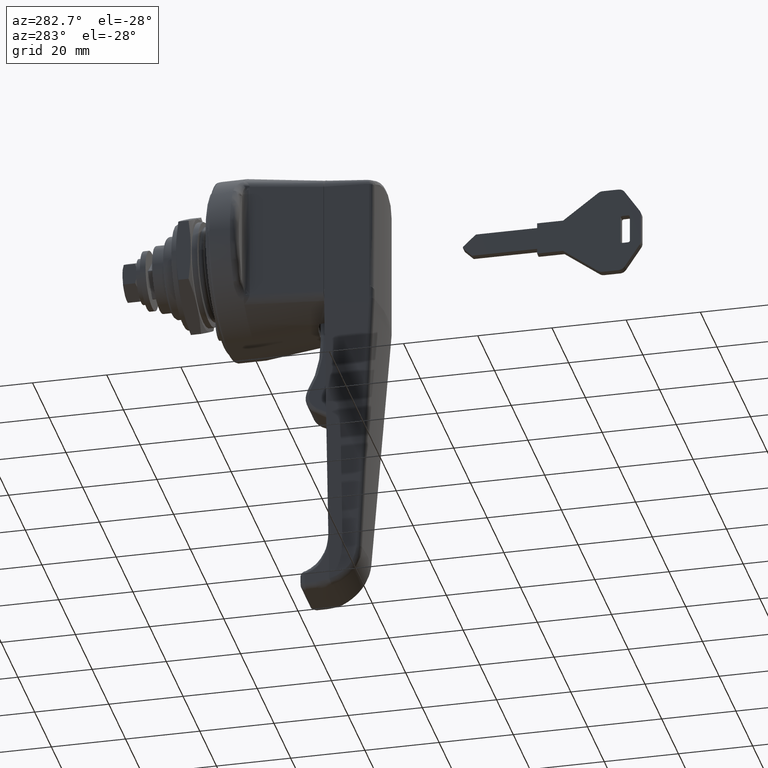
[diagram: clean part render]
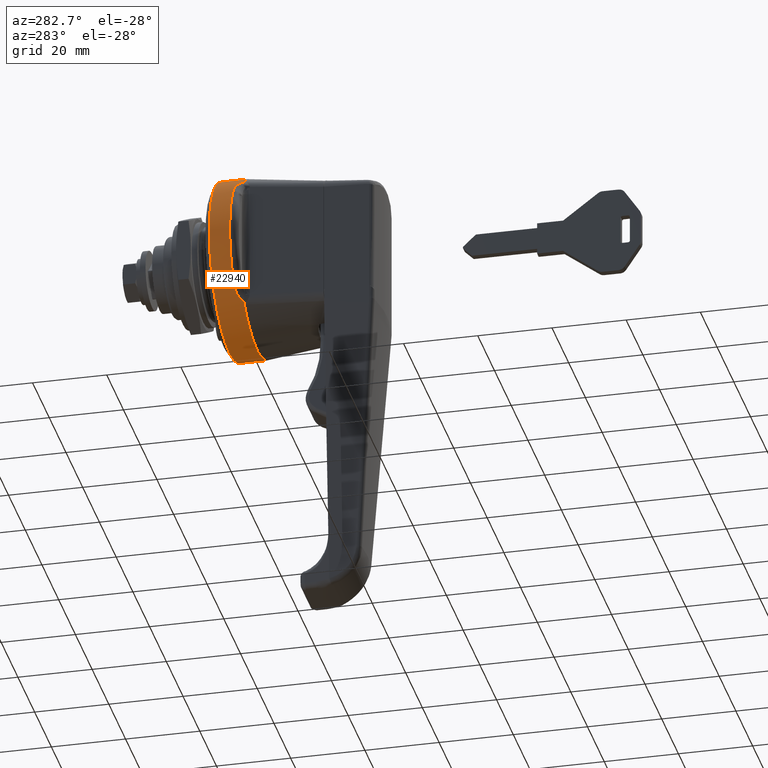
[diagram: same view with one face highlighted and labeled with its STEP entity id]
A machine part, auxiliary view. The second image highlights one B-rep face of the part: STEP entity #22940.
In plain terms, the highlighted face is a freeform B-spline surface patch.
Its self-contained STEP definition (entity closure, byte-faithful):
#22661=CARTESIAN_POINT('',(-1.312499997217314,4.659876852665353,23.543269690465536));
#22662=CARTESIAN_POINT('',(-1.312499997217313,5.333675116333699,23.409906016960761));
#22663=CARTESIAN_POINT('',(-1.312499997217314,5.998743119599301,23.238224566112180));
#22664=CARTESIAN_POINT('',(-1.312499997217314,29.236967685711480,17.239481446512880));
#22665=CARTESIAN_POINT('',(-1.312499997217314,23.238224566112180,-5.998743119599301));
#22666=CARTESIAN_POINT('',(-1.312499997217314,17.239481446512880,-29.236967685711480));
#22667=CARTESIAN_POINT('',(-1.312499997217314,-5.998743119599301,-23.238224566112180));
#22668=CARTESIAN_POINT('',(-1.312499997217314,-29.236967685711480,-17.239481446512880));
#22669=CARTESIAN_POINT('',(-1.312499997217314,-23.238224566112180,5.998743119599301));
#22670=CARTESIAN_POINT('',(-9.192187500069570,4.659876852665353,23.543269690465536));
#22671=CARTESIAN_POINT('',(-9.192187500069570,5.333675116333699,23.409906016960761));
#22672=CARTESIAN_POINT('',(-9.192187500069569,5.998743119599301,23.238224566112180));
#22673=CARTESIAN_POINT('',(-9.192187500069569,29.236967685711480,17.239481446512880));
#22674=CARTESIAN_POINT('',(-9.192187500069569,23.238224566112180,-5.998743119599301));
#22675=CARTESIAN_POINT('',(-9.192187500069569,17.239481446512880,-29.236967685711480));
#22676=CARTESIAN_POINT('',(-9.192187500069569,-5.998743119599301,-23.238224566112180));
#22677=CARTESIAN_POINT('',(-9.192187500069569,-29.236967685711480,-17.239481446512880));
#22678=CARTESIAN_POINT('',(-9.192187500069569,-23.238224566112180,5.998743119599301));
#22686=(BOUNDED_SURFACE()B_SPLINE_SURFACE(2,1,((#22661,#22670),(#22662,#22671),(#22663,#22672),(#22664,#22673),(#22665,#22674),(#22666,#22675),(#22667,#22676),(#22668,#22677),(#22669,#22678)),.UNSPECIFIED.,.F.,.F.,.U.)B_SPLINE_SURFACE_WITH_KNOTS((3,2,2,2,3),(2,2),(0.0,1.590580079512687,41.355082067329803,81.119584055146902,120.884086042964000),(0.0,7.879687502852256),.UNSPECIFIED.)GEOMETRIC_REPRESENTATION_ITEM()RATIONAL_B_SPLINE_SURFACE(((0.977505800795127,0.977505800795127),(0.988284271247462,0.988284271247462),(1.0,1.0),(0.707106781186548,0.707106781186548),(1.0,1.0),(0.707106781186548,0.707106781186548),(1.0,1.0),(0.707106781186548,0.707106781186548),(1.0,1.0)))REPRESENTATION_ITEM('')SURFACE());
#22687=CARTESIAN_POINT('',(-1.499999999952220,4.659876775231644,23.543269705791850));
#22688=VERTEX_POINT('',#22687);
#22689=CARTESIAN_POINT('',(-1.499999997494160,24.0,3.552714E-015));
#22690=VERTEX_POINT('',#22689);
#22691=CARTESIAN_POINT('',(-1.499999999952220,4.659876775231644,23.543269705791850));
#22692=CARTESIAN_POINT('',(-1.499999999922614,6.093455704608304,23.259680581412699));
#22693=CARTESIAN_POINT('',(-1.499999999841012,8.742853506795425,22.478178987449020));
#22694=CARTESIAN_POINT('',(-1.499999999633748,12.764084193431200,20.492887055069900));
#22695=CARTESIAN_POINT('',(-1.499999999350898,16.352136738104399,17.783832327594400));
#22696=CARTESIAN_POINT('',(-1.499999999033919,19.043301260880920,14.747776496780190));
#22697=CARTESIAN_POINT('',(-1.499999998710693,21.072705412645220,11.651910162006150));
#22698=CARTESIAN_POINT('',(-1.499999998417364,22.397244923769421,8.842426385785215));
#22699=CARTESIAN_POINT('',(-1.499999997996737,23.647357461084781,4.813647430612642));
#22700=CARTESIAN_POINT('',(-1.499999997700581,24.000575350637192,1.977195985030285));
#22701=CARTESIAN_POINT('',(-1.499999997494160,24.0,3.552714E-015));
#22702=B_SPLINE_CURVE_WITH_KNOTS('',3,(#22691,#22692,#22693,#22694,#22695,#22696,#22697,#22698,#22699,#22700,#22701),.UNSPECIFIED.,.F.,.U.,(4,1,1,1,1,1,1,1,4),(0.000000010904230,4.384064393065156,8.252402171885358,13.410158140861620,17.794240787841868,20.373103010884240,24.499315818698740,27.078207962694581,33.009607181764359),.UNSPECIFIED.);
#22703=EDGE_CURVE('',#22688,#22690,#22702,.T.);
#22704=ORIENTED_EDGE('',*,*,#22703,.T.);
#22705=CARTESIAN_POINT('',(-1.499999999999920,0.0,-24.0));
#22706=VERTEX_POINT('',#22705);
#22707=CARTESIAN_POINT('',(-1.499999997494160,24.0,3.552714E-015));
#22708=CARTESIAN_POINT('',(-1.499999997688918,24.000383004586421,-1.865338756279836));
#22709=CARTESIAN_POINT('',(-1.499999998037395,23.608836384398629,-5.203107788202281));
#22710=CARTESIAN_POINT('',(-1.499999998539735,21.986668575951992,-10.014506394069789));
#22711=CARTESIAN_POINT('',(-1.499999998923438,19.859942943415930,-13.689382905960681));
#22712=CARTESIAN_POINT('',(-1.499999999238560,17.335419294800449,-16.708055532328171));
#22713=CARTESIAN_POINT('',(-1.499999999459464,15.001360804047620,-18.823529633372910));
#22714=CARTESIAN_POINT('',(-1.499999999649096,12.371452704144570,-20.639720406429529));
#22715=CARTESIAN_POINT('',(-1.499999999817054,9.270822712547826,-22.248581014209989));
#22716=CARTESIAN_POINT('',(-1.499999999960758,5.104976500385339,-23.624871172658750));
#22717=CARTESIAN_POINT('',(-1.499999999999955,1.816252113755384,-24.000337310726682));
#22718=CARTESIAN_POINT('',(-1.499999999999920,0.0,-24.0));
#22719=B_SPLINE_CURVE_WITH_KNOTS('',3,(#22707,#22708,#22709,#22710,#22711,#22712,#22713,#22714,#22715,#22716,#22717,#22718),.UNSPECIFIED.,.F.,.U.,(4,1,1,1,1,1,1,1,1,4),(0.000000105611718,5.595946490900630,10.013844193518869,15.168062138283020,18.260590326064442,21.794786206772141,24.592809141674341,27.832588243354220,32.250466234017033,37.699170982045537),.UNSPECIFIED.);
#22720=EDGE_CURVE('',#22690,#22706,#22719,.T.);
#22721=ORIENTED_EDGE('',*,*,#22720,.T.);
#22722=CARTESIAN_POINT('',(-1.499999997285184,-23.839479330836230,-2.771141503899008));
#22723=VERTEX_POINT('',#22722);
#22724=CARTESIAN_POINT('',(-1.499999999999920,0.0,-24.0));
#22725=CARTESIAN_POINT('',(-1.499999999999925,-1.000349320689141,-24.000023991278020));
#22726=CARTESIAN_POINT('',(-1.499999999982809,-3.137481567996840,-23.866212810962161));
#22727=CARTESIAN_POINT('',(-1.499999999899904,-6.401491641330104,-23.217892214708471));
#22728=CARTESIAN_POINT('',(-1.499999999767293,-9.323409681311272,-22.180835012804351));
#22729=CARTESIAN_POINT('',(-1.499999999566983,-12.459434225255389,-20.614580675743959));
#22730=CARTESIAN_POINT('',(-1.499999999299968,-15.458811794164291,-18.526433001010989));
#22731=CARTESIAN_POINT('',(-1.499999998936280,-18.292615147870670,-15.682079595591061));
#22732=CARTESIAN_POINT('',(-1.499999998549913,-20.495229446147089,-12.661896534212090));
#22733=CARTESIAN_POINT('',(-1.499999998203293,-21.905134078304709,-9.950318503832703));
#22734=CARTESIAN_POINT('',(-1.499999997778437,-23.155955113344749,-6.628434875112098));
#22735=CARTESIAN_POINT('',(-1.499999997493129,-23.650742481033380,-4.397212773840856));
#22736=CARTESIAN_POINT('',(-1.499999997285184,-23.839479330836230,-2.771141503899008));
#22737=B_SPLINE_CURVE_WITH_KNOTS('',3,(#22724,#22725,#22726,#22727,#22728,#22729,#22730,#22731,#22732,#22733,#22734,#22735,#22736),.UNSPECIFIED.,.F.,.U.,(4,1,1,1,1,1,1,1,1,1,4),(0.000000085022080,3.001051705974565,6.411412486839225,9.958177836735953,12.277217231271090,16.915287491977129,20.871217788286639,24.281569143504338,28.101164859406570,30.010944509175811,34.921822639062199),.UNSPECIFIED.);
#22738=EDGE_CURVE('',#22706,#22723,#22737,.T.);
#22739=ORIENTED_EDGE('',*,*,#22738,.T.);
#22740=CARTESIAN_POINT('',(-1.499999998730843,-23.238224587901659,5.998743035190170));
#22741=VERTEX_POINT('',#22740);
#22742=CARTESIAN_POINT('',(-1.499999997285184,-23.839479330836230,-2.771141503899008));
#22743=CARTESIAN_POINT('',(-1.499999997465398,-23.956443186517902,-1.764961834914187));
#22744=CARTESIAN_POINT('',(-1.499999997979020,-24.111228340855099,1.183703219385959));
#22745=CARTESIAN_POINT('',(-1.499999998449631,-23.722107898508860,4.126368658735339));
#22746=CARTESIAN_POINT('',(-1.499999998730843,-23.238224587901659,5.998743035190170));
#22747=B_SPLINE_CURVE_WITH_KNOTS('',3,(#22742,#22743,#22744,#22745,#22746),.UNSPECIFIED.,.F.,.U.,(4,1,4),(5.549868E-009,3.038884424976097,8.840376358083521),.UNSPECIFIED.);
#22748=EDGE_CURVE('',#22723,#22741,#22747,.T.);
#22749=ORIENTED_EDGE('',*,*,#22748,.T.);
#22750=CARTESIAN_POINT('',(-7.0,-23.238224584320388,5.998743049063442));
#22751=VERTEX_POINT('',#22750);
#22752=CARTESIAN_POINT('',(-1.499999998730843,-23.238224587901659,5.998743035190170));
#22753=CARTESIAN_POINT('',(-7.0,-23.238224584320388,5.998743049063442));
#22754=QUASI_UNIFORM_CURVE('',1,(#22752,#22753),.UNSPECIFIED.,.F.,.U.);
#22755=EDGE_CURVE('',#22741,#22751,#22754,.T.);
#22756=ORIENTED_EDGE('',*,*,#22755,.T.);
#22757=CARTESIAN_POINT('',(-7.0,-19.870219480539902,-13.460103186646460));
#22758=VERTEX_POINT('',#22757);
#22759=CARTESIAN_POINT('',(-7.0,-23.238224584320388,5.998743049063442));
#22760=CARTESIAN_POINT('',(-7.000000000000024,-23.715598137280491,4.151323390443753));
#22761=CARTESIAN_POINT('',(-6.999999999999952,-24.183301723398358,0.659536250367967));
#22762=CARTESIAN_POINT('',(-6.999999999999992,-23.788738085497389,-3.957582149848349));
#22763=CARTESIAN_POINT('',(-7.000000000000060,-22.866643968596620,-7.505700989144195));
#22764=CARTESIAN_POINT('',(-6.999999999999797,-21.635236920714949,-10.558652814919981));
#22765=CARTESIAN_POINT('',(-7.000000000000235,-20.553964804183892,-12.450873365096861));
#22766=CARTESIAN_POINT('',(-7.0,-19.870219480539902,-13.460103186646460));
#22767=B_SPLINE_CURVE_WITH_KNOTS('',3,(#22759,#22760,#22761,#22762,#22763,#22764,#22765,#22766),.UNSPECIFIED.,.F.,.U.,(4,1,1,1,1,4),(0.000000032942900,5.724169190375969,10.494283780873340,13.833404706647819,16.695491494862210,20.352597456692351),.UNSPECIFIED.);
#22768=EDGE_CURVE('',#22751,#22758,#22767,.T.);
#22769=ORIENTED_EDGE('',*,*,#22768,.T.);
#22770=CARTESIAN_POINT('',(-9.0,-16.091199536753301,-17.806552093776901));
#22771=VERTEX_POINT('',#22770);
#22772=CARTESIAN_POINT('',(-7.0,-19.870219480539902,-13.460103186646460));
#22773=CARTESIAN_POINT('',(-7.000000000000003,-19.796432345620449,-13.569030031066520));
#22774=CARTESIAN_POINT('',(-7.001714196380235,-19.721777207840979,-13.677309362903619));
#22775=CARTESIAN_POINT('',(-7.008829639058615,-19.570737357167999,-13.892570926255351));
#22776=CARTESIAN_POINT('',(-7.014238674437497,-19.494291817875691,-13.999634725017140));
#22777=CARTESIAN_POINT('',(-7.036353459767455,-19.263143414170251,-14.317822790589110));
#22778=CARTESIAN_POINT('',(-7.058922501299836,-19.106463726855178,-14.526189233186519));
#22779=CARTESIAN_POINT('',(-7.122003404366749,-18.788409710793349,-14.935286750623259));
#22780=CARTESIAN_POINT('',(-7.162502190991373,-18.627033414618712,-15.136019056361540));
#22781=CARTESIAN_POINT('',(-7.264537484721942,-18.300155965972781,-15.529640637340339));
#22782=CARTESIAN_POINT('',(-7.326048527526568,-18.134651098835750,-15.722532403956199));
#22783=CARTESIAN_POINT('',(-7.437437246083621,-17.883866889060251,-16.005724101453939));
#22784=CARTESIAN_POINT('',(-7.477891103632317,-17.799632735368849,-16.099332178690961));
#22785=CARTESIAN_POINT('',(-7.565090512559855,-17.632075026820019,-16.282670308104802));
#22786=CARTESIAN_POINT('',(-7.611861952944978,-17.548653587798540,-16.372518932691921));
#22787=CARTESIAN_POINT('',(-7.762445840117315,-17.299875971511320,-16.636489027254662));
#22788=CARTESIAN_POINT('',(-7.876436521755563,-17.135969871735949,-16.805061681011921));
#22789=CARTESIAN_POINT('',(-8.072107780262824,-16.895193396391029,-17.045976958961869));
#22790=CARTESIAN_POINT('',(-8.141464916698974,-16.815789381186018,-17.124285780018369));
#22791=CARTESIAN_POINT('',(-8.252496380452900,-16.698340275969571,-17.238573491590589));
#22792=CARTESIAN_POINT('',(-8.290752316508600,-16.659394917004992,-17.276208833733211));
#22793=CARTESIAN_POINT('',(-8.369244300573255,-16.582634577300830,-17.349900897215520));
#22794=CARTESIAN_POINT('',(-8.409497766642849,-16.544794555532381,-17.385983091564800));
#22795=CARTESIAN_POINT('',(-8.616002446002126,-16.358489414178010,-17.562516425770131));
#22796=CARTESIAN_POINT('',(-8.797769045554098,-16.218572005103599,-17.691449754316672));
#22797=CARTESIAN_POINT('',(-9.0,-16.091199536753251,-17.806552093776901));
#22798=B_SPLINE_CURVE_WITH_KNOTS('',3,(#22772,#22773,#22774,#22775,#22776,#22777,#22778,#22779,#22780,#22781,#22782,#22783,#22784,#22785,#22786,#22787,#22788,#22789,#22790,#22791,#22792,#22793,#22794,#22795,#22796,#22797),.UNSPECIFIED.,.F.,.U.,(4,2,2,2,2,2,2,2,2,2,2,2,4),(0.0,0.062500000000000,0.125000000000000,0.250000000000000,0.375000000000001,0.500000000000001,0.562500000000000,0.625000000000000,0.749999999999998,0.812499999999997,0.843749999999997,0.874999999999997,1.0),.UNSPECIFIED.);
#22799=EDGE_CURVE('',#22758,#22771,#22798,.T.);
#22800=ORIENTED_EDGE('',*,*,#22799,.T.);
#22801=CARTESIAN_POINT('',(-9.0,-15.435111378219000,-18.378175555314900));
#22802=VERTEX_POINT('',#22801);
#22803=CARTESIAN_POINT('',(-9.0,-15.435111378219000,-18.378175555314900));
#22804=CARTESIAN_POINT('',(-8.999999999999996,-15.657235247704021,-18.191622640774671));
#22805=CARTESIAN_POINT('',(-9.000000000000004,-15.875985634564310,-18.001034169405870));
#22806=CARTESIAN_POINT('',(-9.0,-16.091199536753301,-17.806552093776901));
#22807=B_SPLINE_CURVE_WITH_KNOTS('',3,(#22803,#22804,#22805,#22806),.UNSPECIFIED.,.F.,.U.,(4,4),(6.120826E-011,0.870225950399746),.UNSPECIFIED.);
#22808=EDGE_CURVE('',#22802,#22771,#22807,.T.);
#22809=ORIENTED_EDGE('',*,*,#22808,.F.);
#22810=CARTESIAN_POINT('',(-9.0,15.435111378219000,-18.378175555314900));
#22811=VERTEX_POINT('',#22810);
#22812=CARTESIAN_POINT('',(-9.0,15.435111378219000,-18.378175555314900));
#22813=CARTESIAN_POINT('',(-9.000000000000004,14.499001746641319,-19.164456632002810));
#22814=CARTESIAN_POINT('',(-9.0,12.506278225625859,-20.593490046993480));
#22815=CARTESIAN_POINT('',(-9.000000000000011,8.835331303441745,-22.455507626313150));
#22816=CARTESIAN_POINT('',(-8.999999999999993,4.880512404215130,-23.632452013623720));
#22817=CARTESIAN_POINT('',(-9.000000000000036,0.962925703175629,-24.061576012324970));
#22818=CARTESIAN_POINT('',(-9.000000000000009,-2.010790237661208,-23.964113911790839));
#22819=CARTESIAN_POINT('',(-8.999999999999973,-4.952711009692973,-23.543853969185871));
#22820=CARTESIAN_POINT('',(-9.000000000000076,-8.251773420880010,-22.659470011937628));
#22821=CARTESIAN_POINT('',(-9.000000000000055,-11.996363035375170,-20.936783441137070));
#22822=CARTESIAN_POINT('',(-8.999999999999936,-14.365295246435441,-19.276807237215589));
#22823=CARTESIAN_POINT('',(-9.0,-15.435111378219000,-18.378175555314900));
#22824=B_SPLINE_CURVE_WITH_KNOTS('',3,(#22812,#22813,#22814,#22815,#22816,#22817,#22818,#22819,#22820,#22821,#22822,#22823),.UNSPECIFIED.,.F.,.U.,(4,1,1,1,1,1,1,1,1,4),(0.000000021301346,3.667551257962934,7.335106385932054,12.312519983533560,15.980070260997641,19.123657085282009,21.219407888628862,24.886974487582549,29.340446813181771,33.531923622935800),.UNSPECIFIED.);
#22825=EDGE_CURVE('',#22811,#22802,#22824,.T.);
#22826=ORIENTED_EDGE('',*,*,#22825,.F.);
#22827=CARTESIAN_POINT('',(-9.0,16.091199536753301,-17.806552093776901));
#22828=VERTEX_POINT('',#22827);
#22829=CARTESIAN_POINT('',(-9.0,16.091199536753301,-17.806552093776901));
#22830=CARTESIAN_POINT('',(-9.000000000000005,15.875984711331309,-18.001034952242740));
#22831=CARTESIAN_POINT('',(-9.000000000000002,15.657234345807341,-18.191623448100572));
#22832=CARTESIAN_POINT('',(-9.0,15.435111378219000,-18.378175555314900));
#22833=B_SPLINE_CURVE_WITH_KNOTS('',3,(#22829,#22830,#22831,#22832),.UNSPECIFIED.,.F.,.U.,(4,4),(6.121348E-011,0.870225950399747),.UNSPECIFIED.);
#22834=EDGE_CURVE('',#22828,#22811,#22833,.T.);
#22835=ORIENTED_EDGE('',*,*,#22834,.F.);
#22836=CARTESIAN_POINT('',(-7.0,19.870219480539902,-13.460103186646460));
#22837=VERTEX_POINT('',#22836);
#22838=CARTESIAN_POINT('',(-9.0,16.091199536753251,-17.806552093776901));
#22839=CARTESIAN_POINT('',(-8.797769045554100,16.218572005103610,-17.691449754316672));
#22840=CARTESIAN_POINT('',(-8.616002446002128,16.358489414178020,-17.562516425770131));
#22841=CARTESIAN_POINT('',(-8.409497766642849,16.544794555532370,-17.385983091564800));
#22842=CARTESIAN_POINT('',(-8.369244300573252,16.582634577300830,-17.349900897215520));
#22843=CARTESIAN_POINT('',(-8.290752316508604,16.659394917004981,-17.276208833733211));
#22844=CARTESIAN_POINT('',(-8.252496380452900,16.698340275969560,-17.238573491590589));
#22845=CARTESIAN_POINT('',(-8.141464916698975,16.815789381186018,-17.124285780018369));
#22846=CARTESIAN_POINT('',(-8.072107780262822,16.895193396391029,-17.045976958961880));
#22847=CARTESIAN_POINT('',(-7.876436521755561,17.135969871735949,-16.805061681011932));
#22848=CARTESIAN_POINT('',(-7.762445840117317,17.299875971511320,-16.636489027254669));
#22849=CARTESIAN_POINT('',(-7.611861952944977,17.548653587798530,-16.372518932691921));
#22850=CARTESIAN_POINT('',(-7.565090512559854,17.632075026820019,-16.282670308104802));
#22851=CARTESIAN_POINT('',(-7.477891103632317,17.799632735368849,-16.099332178690961));
#22852=CARTESIAN_POINT('',(-7.437437246083620,17.883866889060251,-16.005724101453950));
#22853=CARTESIAN_POINT('',(-7.326048527526567,18.134651098835750,-15.722532403956199));
#22854=CARTESIAN_POINT('',(-7.264537484721943,18.300155965972781,-15.529640637340339));
#22855=CARTESIAN_POINT('',(-7.162502190991375,18.627033414618712,-15.136019056361540));
#22856=CARTESIAN_POINT('',(-7.122003404366753,18.788409710793349,-14.935286750623259));
#22857=CARTESIAN_POINT('',(-7.058922501299838,19.106463726855178,-14.526189233186519));
#22858=CARTESIAN_POINT('',(-7.036353459767457,19.263143414170251,-14.317822790589110));
#22859=CARTESIAN_POINT('',(-7.014238674437497,19.494291817875698,-13.999634725017140));
#22860=CARTESIAN_POINT('',(-7.008829639058617,19.570737357167999,-13.892570926255360));
#22861=CARTESIAN_POINT('',(-7.001714196380235,19.721777207840979,-13.677309362903619));
#22862=CARTESIAN_POINT('',(-7.000000000000003,19.796432345620449,-13.569030031066520));
#22863=CARTESIAN_POINT('',(-7.0,19.870219480539902,-13.460103186646460));
#22864=B_SPLINE_CURVE_WITH_KNOTS('',3,(#22838,#22839,#22840,#22841,#22842,#22843,#22844,#22845,#22846,#22847,#22848,#22849,#22850,#22851,#22852,#22853,#22854,#22855,#22856,#22857,#22858,#22859,#22860,#22861,#22862,#22863),.UNSPECIFIED.,.F.,.U.,(4,2,2,2,2,2,2,2,2,2,2,2,4),(0.0,0.125000000000003,0.156250000000003,0.187500000000003,0.250000000000002,0.375000000000000,0.437500000000000,0.499999999999999,0.624999999999999,0.750000000000000,0.875000000000000,0.937500000000000,1.0),.UNSPECIFIED.);
#22865=EDGE_CURVE('',#22828,#22837,#22864,.T.);
#22866=ORIENTED_EDGE('',*,*,#22865,.T.);
#22867=CARTESIAN_POINT('',(-7.0,19.870219480539902,13.460103186646460));
#22868=VERTEX_POINT('',#22867);
#22869=CARTESIAN_POINT('',(-7.0,19.870219480539902,-13.460103186646460));
#22870=CARTESIAN_POINT('',(-7.000000000000012,20.621621468364690,-12.351032542725349));
#22871=CARTESIAN_POINT('',(-6.999999999999978,21.937945237227328,-10.006612593195500));
#22872=CARTESIAN_POINT('',(-7.000000000000025,23.425217220978212,-5.858677845215721));
#22873=CARTESIAN_POINT('',(-6.999999999999967,24.088997754358552,-1.568350457653737));
#22874=CARTESIAN_POINT('',(-7.000000000000014,23.967182428160900,2.162563938342755));
#22875=CARTESIAN_POINT('',(-6.999999999999963,23.474353224488631,5.252715120497878));
#22876=CARTESIAN_POINT('',(-7.000000000000114,22.423111823275018,8.987116180702557));
#22877=CARTESIAN_POINT('',(-6.999999999999848,20.997741941382390,11.796697538758229));
#22878=CARTESIAN_POINT('',(-7.0,19.870219480539902,13.460103186646460));
#22879=B_SPLINE_CURVE_WITH_KNOTS('',3,(#22869,#22870,#22871,#22872,#22873,#22874,#22875,#22876,#22877,#22878),.UNSPECIFIED.,.F.,.U.,(4,1,1,1,1,1,1,4),(0.000000045903008,4.018927935358235,8.037896881861602,13.173250839104290,16.968849588693860,19.201625712920439,22.550755234374510,28.579167608438460),.UNSPECIFIED.);
#22880=EDGE_CURVE('',#22837,#22868,#22879,.T.);
#22881=ORIENTED_EDGE('',*,*,#22880,.T.);
#22882=CARTESIAN_POINT('',(-9.0,16.091199536753301,17.806552093776901));
#22883=VERTEX_POINT('',#22882);
#22884=CARTESIAN_POINT('',(-7.0,19.870219480539902,13.460103186646460));
#22885=CARTESIAN_POINT('',(-7.000000000000001,19.796432345620449,13.569030031066520));
#22886=CARTESIAN_POINT('',(-7.001714196380236,19.721777207840979,13.677309362903619));
#22887=CARTESIAN_POINT('',(-7.008829639058617,19.570737357167999,13.892570926255360));
#22888=CARTESIAN_POINT('',(-7.014238674437496,19.494291817875698,13.999634725017140));
#22889=CARTESIAN_POINT('',(-7.036353459767457,19.263143414170258,14.317822790589110));
#22890=CARTESIAN_POINT('',(-7.058922501299837,19.106463726855178,14.526189233186519));
#22891=CARTESIAN_POINT('',(-7.122003404366750,18.788409710793360,14.935286750623259));
#22892=CARTESIAN_POINT('',(-7.162502190991374,18.627033414618712,15.136019056361540));
#22893=CARTESIAN_POINT('',(-7.264537484721942,18.300155965972781,15.529640637340339));
#22894=CARTESIAN_POINT('',(-7.326048527526567,18.134651098835761,15.722532403956199));
#22895=CARTESIAN_POINT('',(-7.437437246083623,17.883866889060251,16.005724101453950));
#22896=CARTESIAN_POINT('',(-7.477891103632316,17.799632735368839,16.099332178690961));
#22897=CARTESIAN_POINT('',(-7.565090512559856,17.632075026820019,16.282670308104809));
#22898=CARTESIAN_POINT('',(-7.611861952944979,17.548653587798540,16.372518932691928));
#22899=CARTESIAN_POINT('',(-7.762445840117318,17.299875971511309,16.636489027254669));
#22900=CARTESIAN_POINT('',(-7.876436521755560,17.135969871735949,16.805061681011921));
#22901=CARTESIAN_POINT('',(-8.072107780262824,16.895193396391040,17.045976958961880));
#22902=CARTESIAN_POINT('',(-8.141464916698974,16.815789381186018,17.124285780018369));
#22903=CARTESIAN_POINT('',(-8.252496380452902,16.698340275969560,17.238573491590600));
#22904=CARTESIAN_POINT('',(-8.290752316508605,16.659394917004981,17.276208833733211));
#22905=CARTESIAN_POINT('',(-8.369244300573255,16.582634577300830,17.349900897215520));
#22906=CARTESIAN_POINT('',(-8.409497766642852,16.544794555532370,17.385983091564810));
#22907=CARTESIAN_POINT('',(-8.616002446002135,16.358489414178020,17.562516425770131));
#22908=CARTESIAN_POINT('',(-8.797769045554100,16.218572005103610,17.691449754316672));
#22909=CARTESIAN_POINT('',(-9.0,16.091199536753301,17.806552093776901));
#22910=B_SPLINE_CURVE_WITH_KNOTS('',3,(#22884,#22885,#22886,#22887,#22888,#22889,#22890,#22891,#22892,#22893,#22894,#22895,#22896,#22897,#22898,#22899,#22900,#22901,#22902,#22903,#22904,#22905,#22906,#22907,#22908,#22909),.UNSPECIFIED.,.F.,.U.,(4,2,2,2,2,2,2,2,2,2,2,2,4),(0.0,0.062500000000001,0.125000000000002,0.250000000000003,0.375000000000005,0.500000000000006,0.562500000000006,0.625000000000006,0.750000000000005,0.812500000000004,0.843750000000003,0.875000000000002,1.0),.UNSPECIFIED.);
#22911=EDGE_CURVE('',#22868,#22883,#22910,.T.);
#22912=ORIENTED_EDGE('',*,*,#22911,.T.);
#22913=CARTESIAN_POINT('',(-9.0,15.435111378219000,18.378175555314900));
#22914=VERTEX_POINT('',#22913);
#22915=CARTESIAN_POINT('',(-9.0,15.435111378219000,18.378175555314900));
#22916=CARTESIAN_POINT('',(-9.0,15.657234345807341,18.191623448100540));
#22917=CARTESIAN_POINT('',(-9.000000000000011,15.875984711331309,18.001034952242730));
#22918=CARTESIAN_POINT('',(-9.0,16.091199536753301,17.806552093776901));
#22919=B_SPLINE_CURVE_WITH_KNOTS('',3,(#22915,#22916,#22917,#22918),.UNSPECIFIED.,.F.,.U.,(4,4),(6.121503E-011,0.870225950399747),.UNSPECIFIED.);
#22920=EDGE_CURVE('',#22914,#22883,#22919,.T.);
#22921=ORIENTED_EDGE('',*,*,#22920,.F.);
#22922=CARTESIAN_POINT('',(-9.0,4.659876936979122,23.543269673777470));
#22923=VERTEX_POINT('',#22922);
#22924=CARTESIAN_POINT('',(-9.0,4.659876936979122,23.543269673777470));
#22925=CARTESIAN_POINT('',(-8.999999999999995,6.202430448301715,23.238149260757218));
#22926=CARTESIAN_POINT('',(-9.000000000000012,8.561627845866749,22.524347090317860));
#22927=CARTESIAN_POINT('',(-8.999999999999993,12.197050354002220,20.781658407824850));
#22928=CARTESIAN_POINT('',(-9.0,14.231133269609879,19.389623248877399));
#22929=CARTESIAN_POINT('',(-9.0,15.435111378219000,18.378175555314900));
#22930=B_SPLINE_CURVE_WITH_KNOTS('',3,(#22924,#22925,#22926,#22927,#22928,#22929),.UNSPECIFIED.,.F.,.U.,(4,1,1,4),(0.000000012292734,4.717285369506781,7.358960705621718,12.076246062836139),.UNSPECIFIED.);
#22931=EDGE_CURVE('',#22923,#22914,#22930,.T.);
#22932=ORIENTED_EDGE('',*,*,#22931,.F.);
#22933=CARTESIAN_POINT('',(-1.499999999952220,4.659876775231644,23.543269705791850));
#22934=CARTESIAN_POINT('',(-9.0,4.659876936979122,23.543269673777470));
#22935=QUASI_UNIFORM_CURVE('',1,(#22933,#22934),.UNSPECIFIED.,.F.,.U.);
#22936=EDGE_CURVE('',#22688,#22923,#22935,.T.);
#22937=ORIENTED_EDGE('',*,*,#22936,.F.);
#22938=EDGE_LOOP('',(#22704,#22721,#22739,#22749,#22756,#22769,#22800,#22809,#22826,#22835,#22866,#22881,#22912,#22921,#22932,#22937));
#22939=FACE_OUTER_BOUND('',#22938,.T.);
#22940=ADVANCED_FACE('',(#22939),#22686,.T.);